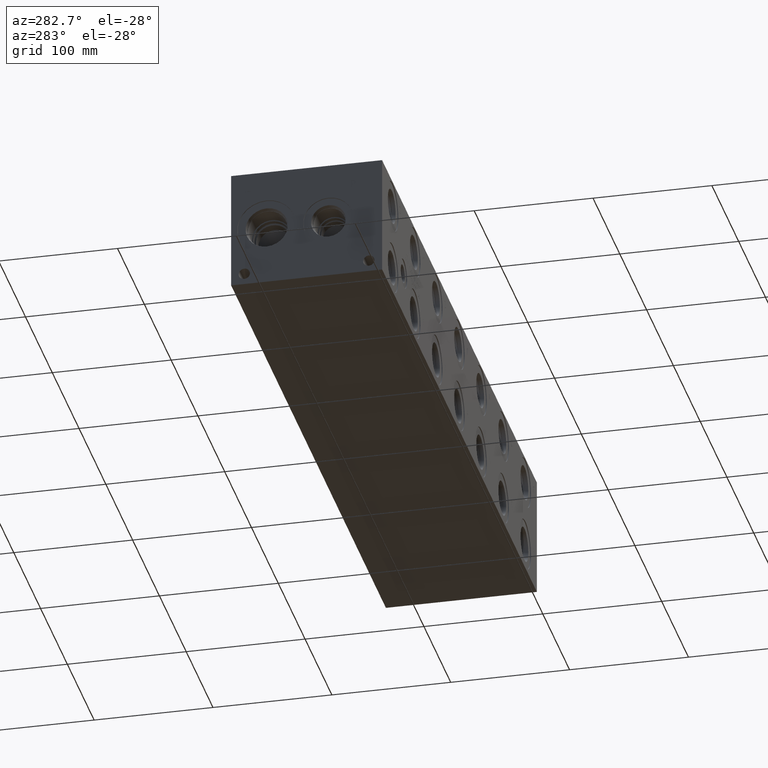
[diagram: clean part render]
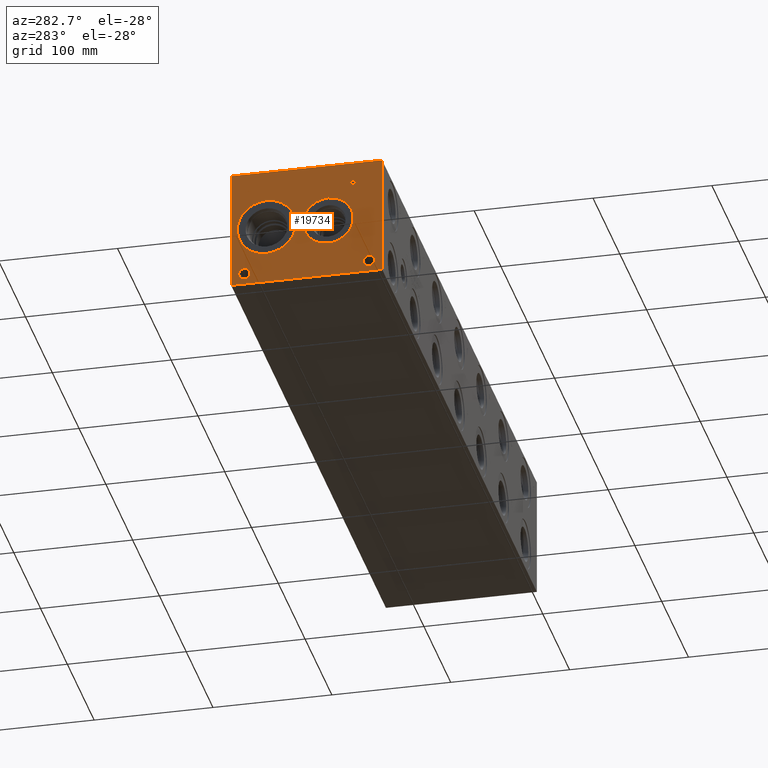
[diagram: same view with one face highlighted and labeled with its STEP entity id]
A machine part, auxiliary view. The second image highlights one B-rep face of the part: STEP entity #19734.
In plain terms, the highlighted planar face has unit normal (-1, 0, 0).
Its self-contained STEP definition (entity closure, byte-faithful):
#602=CIRCLE('',#20843,4.7625);
#603=CIRCLE('',#20844,4.7625);
#604=CIRCLE('',#20845,4.7625);
#605=CIRCLE('',#20846,4.7625);
#606=CIRCLE('',#20847,21.0185);
#607=CIRCLE('',#20848,21.0185);
#608=CIRCLE('',#20849,24.5618);
#609=CIRCLE('',#20850,24.5618);
#1436=B_SPLINE_CURVE_WITH_KNOTS('',2,(#29178,#29179,#29180,#29181),
 .UNSPECIFIED.,.F.,.F.,(3,1,3),(0.,1.,2.),.UNSPECIFIED.);
#1438=B_SPLINE_CURVE_WITH_KNOTS('',2,(#29199,#29200,#29201,#29202),
 .UNSPECIFIED.,.F.,.F.,(3,1,3),(0.,1.,2.),.UNSPECIFIED.);
#1440=B_SPLINE_CURVE_WITH_KNOTS('',2,(#29248,#29249,#29250,#29251),
 .UNSPECIFIED.,.F.,.F.,(3,1,3),(0.,1.,2.),.UNSPECIFIED.);
#1442=B_SPLINE_CURVE_WITH_KNOTS('',2,(#29266,#29267,#29268,#29269),
 .UNSPECIFIED.,.F.,.F.,(3,1,3),(0.,1.,2.),.UNSPECIFIED.);
#1775=FACE_BOUND('',#3174,.T.);
#1776=FACE_BOUND('',#3175,.T.);
#1777=FACE_BOUND('',#3176,.T.);
#1778=FACE_BOUND('',#3177,.T.);
#1779=FACE_BOUND('',#3178,.T.);
#1780=FACE_BOUND('',#3179,.T.);
#2026=FACE_OUTER_BOUND('',#3173,.T.);
#3173=EDGE_LOOP('',(#13576,#13577,#13578,#13579));
#3174=EDGE_LOOP('',(#13580,#13581,#13582,#13583,#13584,#13585,#13586,#13587));
#3175=EDGE_LOOP('',(#13588,#13589));
#3176=EDGE_LOOP('',(#13590,#13591));
#3177=EDGE_LOOP('',(#13592,#13593));
#3178=EDGE_LOOP('',(#13594,#13595));
#3179=EDGE_LOOP('',(#13596,#13597,#13598,#13599,#13600,#13601,#13602,#13603,
#13604));
#4360=LINE('',#27243,#6092);
#4729=LINE('',#29028,#6461);
#4733=LINE('',#29036,#6465);
#4736=LINE('',#29042,#6468);
#4739=LINE('',#29048,#6471);
#4742=LINE('',#29054,#6474);
#4745=LINE('',#29060,#6477);
#4748=LINE('',#29066,#6480);
#4751=LINE('',#29071,#6483);
#4769=LINE('',#29211,#6501);
#4772=LINE('',#29217,#6504);
#4775=LINE('',#29223,#6507);
#4778=LINE('',#29229,#6510);
#4781=LINE('',#29235,#6513);
#4785=LINE('',#29277,#6517);
#4786=LINE('',#29279,#6518);
#4787=LINE('',#29280,#6519);
#6092=VECTOR('',#22369,10.);
#6461=VECTOR('',#22880,10.);
#6465=VECTOR('',#22886,10.);
#6468=VECTOR('',#22891,10.);
#6471=VECTOR('',#22896,10.);
#6474=VECTOR('',#22901,10.);
#6477=VECTOR('',#22906,10.);
#6480=VECTOR('',#22911,10.);
#6483=VECTOR('',#22916,10.);
#6501=VECTOR('',#22944,10.);
#6504=VECTOR('',#22949,10.);
#6507=VECTOR('',#22954,10.);
#6510=VECTOR('',#22959,10.);
#6513=VECTOR('',#22964,10.);
#6517=VECTOR('',#22972,10.);
#6518=VECTOR('',#22973,10.);
#6519=VECTOR('',#22974,10.);
#7810=VERTEX_POINT('',#27236);
#7813=VERTEX_POINT('',#27241);
#8333=VERTEX_POINT('',#29026);
#8334=VERTEX_POINT('',#29027);
#8337=VERTEX_POINT('',#29035);
#8339=VERTEX_POINT('',#29041);
#8341=VERTEX_POINT('',#29047);
#8343=VERTEX_POINT('',#29053);
#8345=VERTEX_POINT('',#29059);
#8347=VERTEX_POINT('',#29065);
#8363=VERTEX_POINT('',#29176);
#8364=VERTEX_POINT('',#29177);
#8367=VERTEX_POINT('',#29198);
#8369=VERTEX_POINT('',#29210);
#8371=VERTEX_POINT('',#29216);
#8373=VERTEX_POINT('',#29222);
#8375=VERTEX_POINT('',#29228);
#8377=VERTEX_POINT('',#29234);
#8379=VERTEX_POINT('',#29247);
#8381=VERTEX_POINT('',#29276);
#8382=VERTEX_POINT('',#29278);
#8383=VERTEX_POINT('',#29281);
#8384=VERTEX_POINT('',#29282);
#8385=VERTEX_POINT('',#29285);
#8386=VERTEX_POINT('',#29286);
#8387=VERTEX_POINT('',#29289);
#8388=VERTEX_POINT('',#29290);
#8389=VERTEX_POINT('',#29293);
#8390=VERTEX_POINT('',#29294);
#9841=EDGE_CURVE('',#7810,#7813,#4360,.T.);
#10410=EDGE_CURVE('',#8333,#8334,#4729,.T.);
#10414=EDGE_CURVE('',#8337,#8333,#4733,.T.);
#10417=EDGE_CURVE('',#8339,#8337,#4736,.T.);
#10420=EDGE_CURVE('',#8341,#8339,#4739,.T.);
#10423=EDGE_CURVE('',#8343,#8341,#4742,.T.);
#10426=EDGE_CURVE('',#8345,#8343,#4745,.T.);
#10429=EDGE_CURVE('',#8347,#8345,#4748,.T.);
#10432=EDGE_CURVE('',#8334,#8347,#4751,.T.);
#10455=EDGE_CURVE('',#8363,#8364,#1436,.T.);
#10459=EDGE_CURVE('',#8367,#8363,#1438,.T.);
#10462=EDGE_CURVE('',#8369,#8367,#4769,.T.);
#10465=EDGE_CURVE('',#8371,#8369,#4772,.T.);
#10468=EDGE_CURVE('',#8373,#8371,#4775,.T.);
#10471=EDGE_CURVE('',#8375,#8373,#4778,.T.);
#10474=EDGE_CURVE('',#8377,#8375,#4781,.T.);
#10477=EDGE_CURVE('',#8379,#8377,#1440,.T.);
#10480=EDGE_CURVE('',#8364,#8379,#1442,.T.);
#10482=EDGE_CURVE('',#8381,#7810,#4785,.T.);
#10483=EDGE_CURVE('',#8382,#7813,#4786,.T.);
#10484=EDGE_CURVE('',#8381,#8382,#4787,.T.);
#10485=EDGE_CURVE('',#8383,#8384,#602,.T.);
#10486=EDGE_CURVE('',#8384,#8383,#603,.T.);
#10487=EDGE_CURVE('',#8385,#8386,#604,.T.);
#10488=EDGE_CURVE('',#8386,#8385,#605,.T.);
#10489=EDGE_CURVE('',#8387,#8388,#606,.T.);
#10490=EDGE_CURVE('',#8388,#8387,#607,.T.);
#10491=EDGE_CURVE('',#8389,#8390,#608,.T.);
#10492=EDGE_CURVE('',#8390,#8389,#609,.T.);
#13576=ORIENTED_EDGE('',*,*,#10482,.T.);
#13577=ORIENTED_EDGE('',*,*,#9841,.T.);
#13578=ORIENTED_EDGE('',*,*,#10483,.F.);
#13579=ORIENTED_EDGE('',*,*,#10484,.F.);
#13580=ORIENTED_EDGE('',*,*,#10410,.T.);
#13581=ORIENTED_EDGE('',*,*,#10432,.T.);
#13582=ORIENTED_EDGE('',*,*,#10429,.T.);
#13583=ORIENTED_EDGE('',*,*,#10426,.T.);
#13584=ORIENTED_EDGE('',*,*,#10423,.T.);
#13585=ORIENTED_EDGE('',*,*,#10420,.T.);
#13586=ORIENTED_EDGE('',*,*,#10417,.T.);
#13587=ORIENTED_EDGE('',*,*,#10414,.T.);
#13588=ORIENTED_EDGE('',*,*,#10485,.T.);
#13589=ORIENTED_EDGE('',*,*,#10486,.T.);
#13590=ORIENTED_EDGE('',*,*,#10487,.T.);
#13591=ORIENTED_EDGE('',*,*,#10488,.T.);
#13592=ORIENTED_EDGE('',*,*,#10489,.T.);
#13593=ORIENTED_EDGE('',*,*,#10490,.T.);
#13594=ORIENTED_EDGE('',*,*,#10491,.T.);
#13595=ORIENTED_EDGE('',*,*,#10492,.T.);
#13596=ORIENTED_EDGE('',*,*,#10455,.T.);
#13597=ORIENTED_EDGE('',*,*,#10480,.T.);
#13598=ORIENTED_EDGE('',*,*,#10477,.T.);
#13599=ORIENTED_EDGE('',*,*,#10474,.T.);
#13600=ORIENTED_EDGE('',*,*,#10471,.T.);
#13601=ORIENTED_EDGE('',*,*,#10468,.T.);
#13602=ORIENTED_EDGE('',*,*,#10465,.T.);
#13603=ORIENTED_EDGE('',*,*,#10462,.T.);
#13604=ORIENTED_EDGE('',*,*,#10459,.T.);
#18514=PLANE('',#20842);
#19734=ADVANCED_FACE('',(#2026,#1775,#1776,#1777,#1778,#1779,#1780),#18514,
 .T.);
#20842=AXIS2_PLACEMENT_3D('',#29275,#22970,#22971);
#20843=AXIS2_PLACEMENT_3D('',#29283,#22975,#22976);
#20844=AXIS2_PLACEMENT_3D('',#29284,#22977,#22978);
#20845=AXIS2_PLACEMENT_3D('',#29287,#22979,#22980);
#20846=AXIS2_PLACEMENT_3D('',#29288,#22981,#22982);
#20847=AXIS2_PLACEMENT_3D('',#29291,#22983,#22984);
#20848=AXIS2_PLACEMENT_3D('',#29292,#22985,#22986);
#20849=AXIS2_PLACEMENT_3D('',#29295,#22987,#22988);
#20850=AXIS2_PLACEMENT_3D('',#29296,#22989,#22990);
#22369=DIRECTION('',(0.,0.,1.));
#22880=DIRECTION('',(0.,1.,0.));
#22886=DIRECTION('',(0.,3.17280044688051E-15,-1.));
#22891=DIRECTION('',(0.,1.,8.33818088455555E-15));
#22896=DIRECTION('',(0.,0.,-1.));
#22901=DIRECTION('',(0.,-1.,-3.47984565141734E-15));
#22906=DIRECTION('',(0.,0.,1.));
#22911=DIRECTION('',(0.,1.,0.));
#22916=DIRECTION('',(0.,-3.17280044688051E-15,1.));
#22944=DIRECTION('',(0.,-1.,0.));
#22949=DIRECTION('',(0.,-3.49676548440641E-15,1.));
#22954=DIRECTION('',(0.,1.,1.05244112384329E-14));
#22959=DIRECTION('',(0.,3.75218139804999E-15,-1.));
#22964=DIRECTION('',(0.,1.,0.));
#22970=DIRECTION('center_axis',(-1.,0.,0.));
#22971=DIRECTION('ref_axis',(0.,-1.,0.));
#22972=DIRECTION('',(0.,-1.,0.));
#22973=DIRECTION('',(0.,-1.,0.));
#22974=DIRECTION('',(0.,0.,1.));
#22975=DIRECTION('center_axis',(1.,0.,0.));
#22976=DIRECTION('ref_axis',(0.,1.,0.));
#22977=DIRECTION('center_axis',(1.,0.,0.));
#22978=DIRECTION('ref_axis',(0.,1.,0.));
#22979=DIRECTION('center_axis',(1.,0.,0.));
#22980=DIRECTION('ref_axis',(0.,1.,0.));
#22981=DIRECTION('center_axis',(1.,0.,0.));
#22982=DIRECTION('ref_axis',(0.,1.,0.));
#22983=DIRECTION('center_axis',(1.,0.,0.));
#22984=DIRECTION('ref_axis',(0.,0.,1.));
#22985=DIRECTION('center_axis',(1.,0.,0.));
#22986=DIRECTION('ref_axis',(0.,0.,1.));
#22987=DIRECTION('center_axis',(1.,0.,0.));
#22988=DIRECTION('ref_axis',(0.,0.,1.));
#22989=DIRECTION('center_axis',(1.,0.,0.));
#22990=DIRECTION('ref_axis',(0.,0.,1.));
#27236=CARTESIAN_POINT('',(0.,0.,0.));
#27241=CARTESIAN_POINT('',(0.,0.,101.6));
#27243=CARTESIAN_POINT('',(0.,0.,0.));
#29026=CARTESIAN_POINT('',(0.,112.918334728547,79.375));
#29027=CARTESIAN_POINT('',(0.,113.762256920087,79.375));
#29028=CARTESIAN_POINT('',(0.,119.959167364273,79.375));
#29035=CARTESIAN_POINT('',(0.,112.918334728547,84.9737033194815));
#29036=CARTESIAN_POINT('',(0.,112.918334728547,42.4868516597407));
#29041=CARTESIAN_POINT('',(0.,110.787945781612,84.9737033194815));
#29042=CARTESIAN_POINT('',(0.,118.893972890806,84.9737033194816));
#29047=CARTESIAN_POINT('',(0.,110.787945781612,85.7249999046326));
#29048=CARTESIAN_POINT('',(0.,110.787945781612,42.8624999523163));
#29053=CARTESIAN_POINT('',(0.,115.892645867022,85.7249999046326));
#29054=CARTESIAN_POINT('',(0.,121.446322933511,85.7249999046326));
#29059=CARTESIAN_POINT('',(0.,115.892645867022,84.9737033194815));
#29060=CARTESIAN_POINT('',(0.,115.892645867022,42.4868516597408));
#29065=CARTESIAN_POINT('',(0.,113.762256920086,84.9737033194815));
#29066=CARTESIAN_POINT('',(0.,120.381128460043,84.9737033194815));
#29071=CARTESIAN_POINT('',(0.,113.762256920087,39.6875));
#29176=CARTESIAN_POINT('',(0.,23.0869327976406,85.3287681439707));
#29177=CARTESIAN_POINT('',(0.,22.330490345468,83.8107373726039));
#29178=CARTESIAN_POINT('Ctrl Pts',(0.,23.0869327976406,85.3287681439707));
#29179=CARTESIAN_POINT('Ctrl Pts',(0.,22.7318679731514,85.0869123939563));
#29180=CARTESIAN_POINT('Ctrl Pts',(0.,22.330490345468,84.3407616758269));
#29181=CARTESIAN_POINT('Ctrl Pts',(0.,22.330490345468,83.8107373726039));
#29198=CARTESIAN_POINT('',(0.,24.7490478456117,85.7249999046326));
#29199=CARTESIAN_POINT('Ctrl Pts',(0.,24.7490478456117,85.7249999046326));
#29200=CARTESIAN_POINT('Ctrl Pts',(0.,24.1830024732376,85.7249999046326));
#29201=CARTESIAN_POINT('Ctrl Pts',(0.,23.3905389519139,85.5397486918556));
#29202=CARTESIAN_POINT('Ctrl Pts',(0.,23.0869327976406,85.3287681439707));
#29210=CARTESIAN_POINT('',(0.,26.3442666223022,85.7249999046326));
#29211=CARTESIAN_POINT('',(0.,76.6721333111511,85.7249999046326));
#29216=CARTESIAN_POINT('',(0.,26.3442666223022,79.375));
#29217=CARTESIAN_POINT('',(0.,26.3442666223024,39.6874999999998));
#29222=CARTESIAN_POINT('',(0.,25.5003444307627,79.375));
#29223=CARTESIAN_POINT('',(0.,76.250172215381,79.3750000000005));
#29228=CARTESIAN_POINT('',(0.,25.5003444307627,81.7420988299279));
#29229=CARTESIAN_POINT('',(0.,25.5003444307629,40.8710494149637));
#29234=CARTESIAN_POINT('',(0.,24.7850689147628,81.7420988299279));
#29235=CARTESIAN_POINT('',(0.,75.8925344573814,81.7420988299279));
#29247=CARTESIAN_POINT('',(0.,22.8862439837989,82.4007698086904));
#29248=CARTESIAN_POINT('Ctrl Pts',(0.,22.8862439837989,82.4007698086904));
#29249=CARTESIAN_POINT('Ctrl Pts',(0.,23.2155794731802,82.0765801863307));
#29250=CARTESIAN_POINT('Ctrl Pts',(0.,24.1058144679139,81.7420988299278));
#29251=CARTESIAN_POINT('Ctrl Pts',(0.,24.7850689147628,81.7420988299279));
#29266=CARTESIAN_POINT('Ctrl Pts',(0.,22.330490345468,83.8107373726039));
#29267=CARTESIAN_POINT('Ctrl Pts',(0.,22.330490345468,83.3990680108774));
#29268=CARTESIAN_POINT('Ctrl Pts',(0.,22.6238047656982,82.6580631597695));
#29269=CARTESIAN_POINT('Ctrl Pts',(0.,22.8862439837989,82.4007698086904));
#29275=CARTESIAN_POINT('Origin',(0.,127.,0.));
#29276=CARTESIAN_POINT('',(0.,127.,0.));
#29277=CARTESIAN_POINT('',(0.,127.,0.));
#29278=CARTESIAN_POINT('',(0.,127.,101.6));
#29279=CARTESIAN_POINT('',(0.,127.,101.6));
#29280=CARTESIAN_POINT('',(0.,127.,0.));
#29281=CARTESIAN_POINT('',(0.,120.6373,9.52500000000001));
#29282=CARTESIAN_POINT('',(0.,111.1123,9.52500000000001));
#29283=CARTESIAN_POINT('Origin',(0.,115.8748,9.52500000000001));
#29284=CARTESIAN_POINT('Origin',(0.,115.8748,9.52500000000001));
#29285=CARTESIAN_POINT('',(0.,15.8877,9.52500000000001));
#29286=CARTESIAN_POINT('',(0.,6.3627,9.52500000000001));
#29287=CARTESIAN_POINT('Origin',(0.,11.1252,9.52500000000001));
#29288=CARTESIAN_POINT('Origin',(0.,11.1252,9.52500000000001));
#29289=CARTESIAN_POINT('',(0.,45.2882,71.8185));
#29290=CARTESIAN_POINT('',(0.,45.2882,29.7815));
#29291=CARTESIAN_POINT('Origin',(0.,45.2882,50.8));
#29292=CARTESIAN_POINT('Origin',(0.,45.2882,50.8));
#29293=CARTESIAN_POINT('',(0.,97.2566,75.3618));
#29294=CARTESIAN_POINT('',(6.93889390390723E-17,97.2566,26.2382));
#29295=CARTESIAN_POINT('Origin',(0.,97.2566,50.8));
#29296=CARTESIAN_POINT('Origin',(0.,97.2566,50.8));